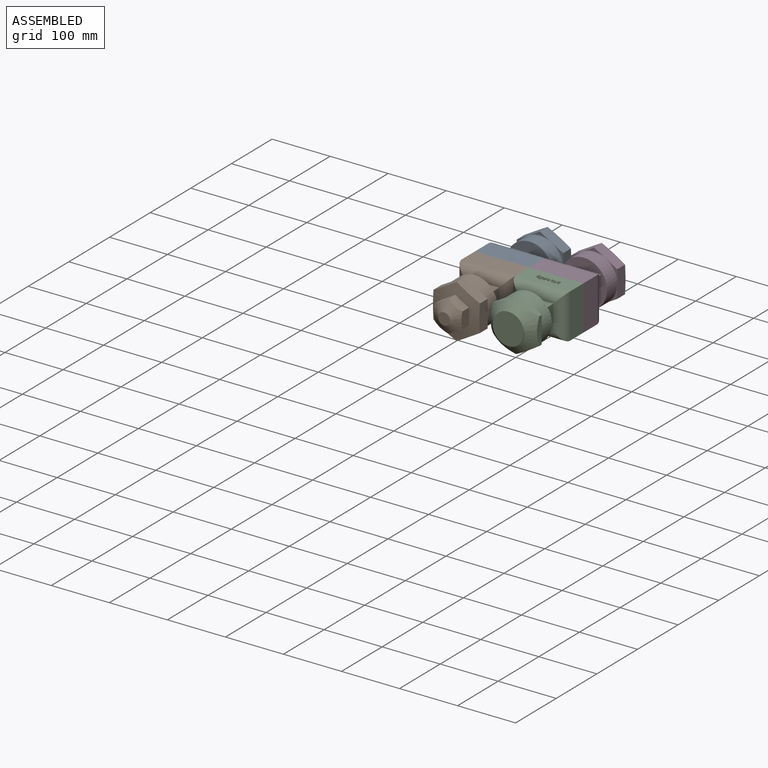
[diagram: assembled view]
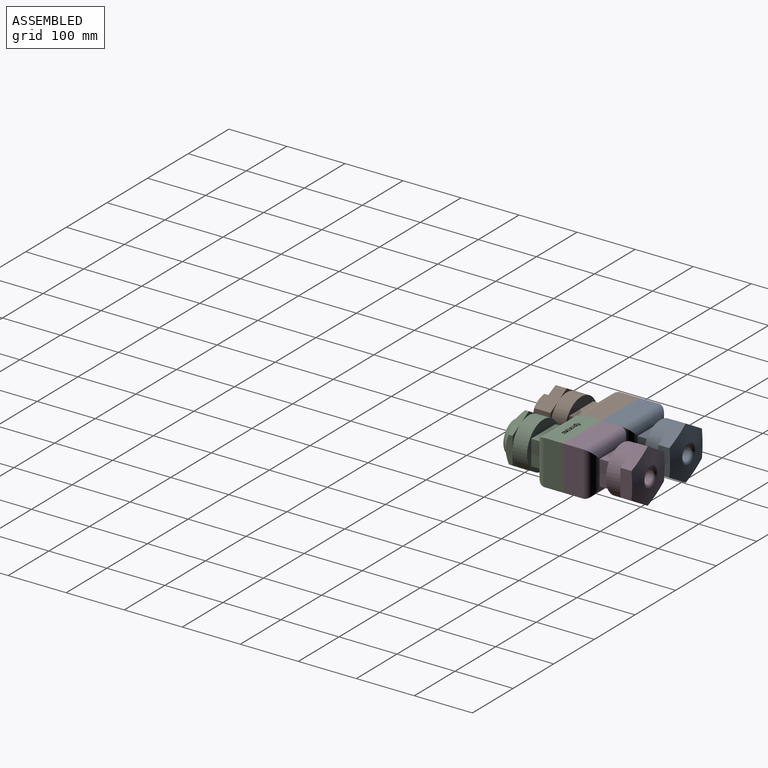
[diagram: assembled view, second angle]
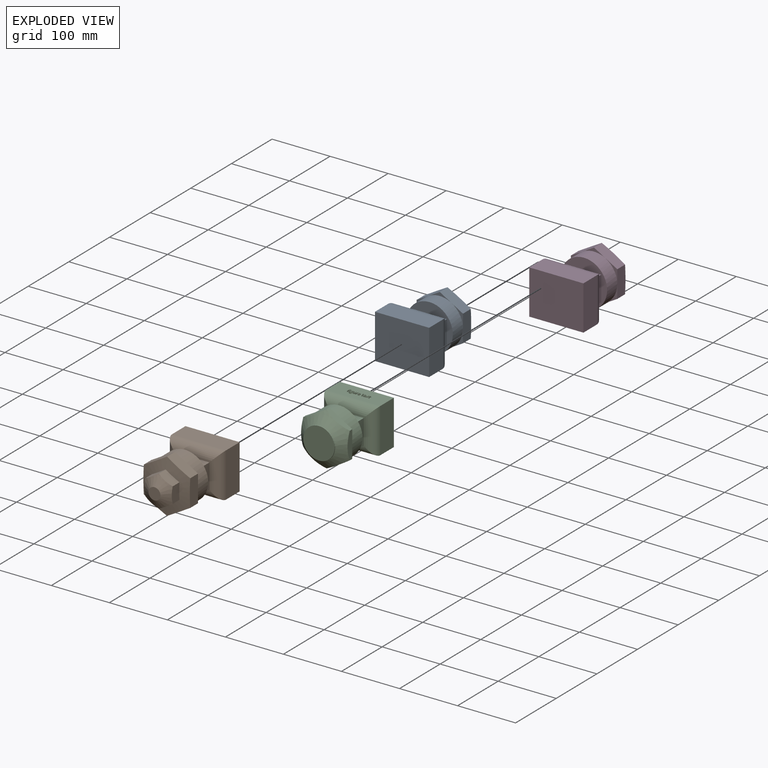
[diagram: exploded view]
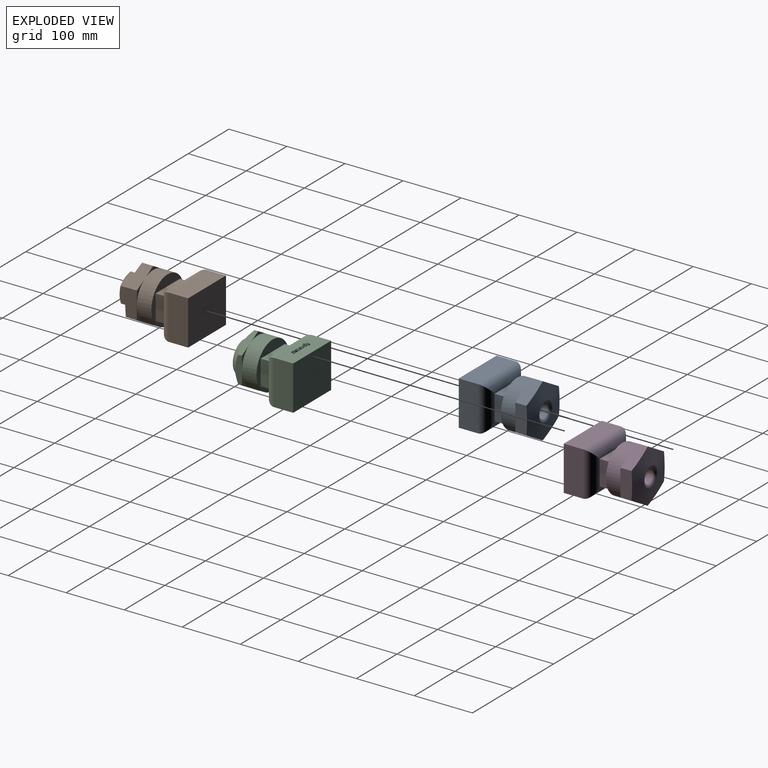
[diagram: exploded view, second angle]
ASSEMBLY  parts=4 mates=5
PART A: 46 faces, bbox 93.3x117x92.4 mm
  f0: plane 88.34x30.6mm, normal (0,0,-1), area 2703.3mm2, adj f1,f3,f4,f5
  f1: plane 71.7x30.6mm, normal (1,0,0), area 2194.1mm2, adj f0,f2,f4,f6
  f2: plane 88.34x30.6mm, normal (0,0,1), area 2703.3mm2, adj f1,f3,f4,f8
  f3: plane 71.7x30.6mm, normal (-1,0,0), area 2194.1mm2, adj f0,f2,f4,f7
  f4: plane 88.34x71.7mm, normal (0,1,0), area 6334.1mm2, adj f0,f1,f2,f3
  f5: cylinder r=14.4mm len=88.34mm, axis (1,0,0), area 1904.8mm2, adj f0,f6,f7,f12
  f6: cylinder r=14.4mm len=71.7mm, axis (0,0,1), area 1486.6mm2, adj f1,f5,f8,f11
  f7: cylinder r=14.4mm len=71.7mm, axis (0,0,-1), area 1486.6mm2, adj f3,f5,f8,f9
  f8: cylinder r=14.4mm len=88.34mm, axis (-1,0,0), area 1904.8mm2, adj f2,f6,f7,f10
  f9: plane 37.9x23.12mm, normal (-1,0,0), area 876.2mm2, adj f7,f10,f12,f13
  f10: plane 54.54x23.12mm, normal (0,0,1), area 1261mm2, adj f8,f9,f11,f13
  f11: plane 37.9x23.12mm, normal (1,0,0), area 876.2mm2, adj f6,f10,f12,f13
  f12: plane 54.54x23.12mm, normal (0,0,-1), area 1261mm2, adj f5,f9,f11,f13
  f13: plane 75x75mm, normal (0,1,0), area 2350.6mm2, adj f9,f10,f11,f12,f14
  f14: cylinder r=37.5mm len=75mm, axis (0,-1,0), area 5301.4mm2, adj f13,f15
  f15: plane 75x75mm, normal (0,-1,0), area 3981.4mm2, adj f14,f16
  f16: cylinder r=11.79mm len=23.57mm, axis (0,1,0), area 1412.3mm2, adj f15,f45
  f17: plane 40x23.09mm, normal (0.5,0,0.87), area 914.5mm2, adj f18,f22,f23,f28,f44
  f18: plane 46.2x20.17mm, normal (1,0,0), area 914.5mm2, adj f17,f19,f23,f24,f44
  f19: plane 40x23.09mm, normal (0.5,0,-0.87), area 914.5mm2, adj f18,f20,f24,f25,f44
  f20: plane 40x23.09mm, normal (-0.5,0,-0.87), area 914.5mm2, adj f19,f21,f25,f26,f44
  f21: plane 46.2x20.17mm, normal (-1,0,0), area 914.5mm2, adj f20,f22,f26,f27,f44
  f22: plane 40x23.09mm, normal (-0.5,0,0.87), area 914.5mm2, adj f17,f21,f27,f28,f44
  f23: plane 34.64x20mm, normal (0,-1,0), area 86mm2, adj f17,f18,f43
  f24: plane 34.64x20mm, normal (0,-1,0), area 86mm2, adj f18,f19,f43
  f25: plane 40x11.55mm, normal (0,-1,0), area 86mm2, adj f19,f20,f43
  f26: plane 34.64x20mm, normal (0,-1,0), area 86mm2, adj f20,f21,f43
  f27: plane 34.64x20mm, normal (0,-1,0), area 86mm2, adj f21,f22,f43
  f28: plane 40x11.55mm, normal (0,-1,0), area 86mm2, adj f17,f22,f43
  f29: plane 93.34x76.7mm, normal (0,-1,0), area 7159.3mm2, adj f30,f31,f32,f33
  f30: plane 76.7x33.1mm, normal (-1,0,0), area 2538.8mm2, adj f29,f31,f33,f34
  f31: plane 93.34x33.1mm, normal (0,0,-1), area 3089.7mm2, adj f29,f30,f32,f35
  f32: plane 76.7x33.1mm, normal (1,0,0), area 2538.8mm2, adj f29,f31,f33,f36
  f33: plane 93.34x33.1mm, normal (0,0,1), area 3089.7mm2, adj f29,f30,f32,f37
  f34: cylinder r=16.9mm len=76.7mm, axis (0,0,1), area 1710mm2, adj f30,f35,f37,f38
  f35: cylinder r=16.9mm len=93.34mm, axis (-1,0,0), area 2151.8mm2, adj f31,f34,f36,f39
  f36: cylinder r=16.9mm len=76.7mm, axis (0,0,-1), area 1710mm2, adj f32,f35,f37,f40
  f37: cylinder r=16.9mm len=93.34mm, axis (1,0,0), area 2151.8mm2, adj f33,f34,f36,f41
  f38: plane 42.9x17.9mm, normal (-1,0,0), area 767.9mm2, adj f34,f39,f41,f42
  f39: plane 59.54x17.9mm, normal (0,0,-1), area 1065.8mm2, adj f35,f38,f40,f42
  f40: plane 42.9x17.9mm, normal (1,0,0), area 767.9mm2, adj f36,f39,f41,f42
  f41: plane 59.54x17.9mm, normal (0,0,1), area 1065.8mm2, adj f37,f38,f40,f42
  f42: plane 80x80mm, normal (0,-1,0), area 2472.1mm2, adj f38,f39,f40,f41,f43
  f43: cylinder r=40mm len=80mm, axis (0,-1,0), area 6283.2mm2, adj f23,f24,f25,f26,f27,f28,f42
  f44: cone r=10.53mm half-angle=80.3deg, axis (0,-1,0), area 4632.5mm2, adj f17,f18,f19,f20,f21,f22,f45
  f45: torus R=16.79mm, axis (0,-1,0), area 763.1mm2, adj f16,f44
PART B: 52 faces, bbox 93.3x142.9x92.4 mm
  f0: plane 23.65x19.03mm, normal (0.5,0,-0.87), area 486.1mm2, adj f1,f5,f6,f34
  f1: plane 23.65x19.03mm, normal (-0.5,0,-0.87), area 486.1mm2, adj f0,f2,f6,f34
  f2: plane 27.33x19.04mm, normal (-1,0,0), area 486.1mm2, adj f1,f3,f6,f34
  f3: plane 23.65x19.03mm, normal (-0.5,0,0.87), area 486.1mm2, adj f2,f4,f6,f34
  f4: plane 23.65x19.03mm, normal (0.5,0,0.87), area 486.1mm2, adj f3,f5,f6,f34
  f5: plane 27.33x19.04mm, normal (1,0,0), area 486.1mm2, adj f0,f4,f6,f34
  f6: cone r=10.53mm half-angle=80.3deg, axis (0,-1,0), area 3657.6mm2, adj f0,f1,f2,f3,f4,f5,f7,f8
  f7: plane 40x23.09mm, normal (0.5,0,0.87), area 914.5mm2, adj f6,f8,f12,f13,f18
  f8: plane 46.2x20.17mm, normal (1,0,0), area 914.5mm2, adj f6,f7,f9,f13,f14
  f9: plane 40x23.09mm, normal (0.5,0,-0.87), area 914.5mm2, adj f6,f8,f10,f14,f15
  f10: plane 40x23.09mm, normal (-0.5,0,-0.87), area 914.5mm2, adj f6,f9,f11,f15,f16
  f11: plane 46.2x20.17mm, normal (-1,0,0), area 914.5mm2, adj f6,f10,f12,f16,f17
  f12: plane 40x23.09mm, normal (-0.5,0,0.87), area 914.5mm2, adj f6,f7,f11,f17,f18
  f13: plane 34.64x20mm, normal (0,-1,0), area 86mm2, adj f7,f8,f33
  f14: plane 34.64x20mm, normal (0,-1,0), area 86mm2, adj f8,f9,f33
  f15: plane 40x11.55mm, normal (0,-1,0), area 86mm2, adj f9,f10,f33
  f16: plane 34.64x20mm, normal (0,-1,0), area 86mm2, adj f10,f11,f33
  f17: plane 34.64x20mm, normal (0,-1,0), area 86mm2, adj f11,f12,f33
  f18: plane 40x11.55mm, normal (0,-1,0), area 86mm2, adj f7,f12,f33
  f19: plane 93.34x76.7mm, normal (0,-1,0), area 7159.3mm2, adj f20,f21,f22,f23
  f20: plane 76.7x33.1mm, normal (-1,0,0), area 2538.8mm2, adj f19,f21,f23,f24
  f21: plane 93.34x33.1mm, normal (0,0,-1), area 3089.7mm2, adj f19,f20,f22,f25
  f22: plane 76.7x33.1mm, normal (1,0,0), area 2538.8mm2, adj f19,f21,f23,f26
  f23: plane 93.34x33.1mm, normal (0,0,1), area 3089.7mm2, adj f19,f20,f22,f27
  f24: cylinder r=16.9mm len=76.7mm, axis (0,0,1), area 1710mm2, adj f20,f25,f27,f28
  f25: cylinder r=16.9mm len=93.34mm, axis (-1,0,0), area 2151.8mm2, adj f21,f24,f26,f29
  f26: cylinder r=16.9mm len=76.7mm, axis (0,0,-1), area 1710mm2, adj f22,f25,f27,f30
  f27: cylinder r=16.9mm len=93.34mm, axis (1,0,0), area 2151.8mm2, adj f23,f24,f26,f31
  f28: plane 42.9x17.9mm, normal (-1,0,0), area 767.9mm2, adj f24,f29,f31,f32
  f29: plane 59.54x17.9mm, normal (0,0,-1), area 1065.8mm2, adj f25,f28,f30,f32
  f30: plane 42.9x17.9mm, normal (1,0,0), area 767.9mm2, adj f26,f29,f31,f32
  f31: plane 59.54x17.9mm, normal (0,0,1), area 1065.8mm2, adj f27,f28,f30,f32
  f32: plane 80x80mm, normal (0,-1,0), area 2472.1mm2, adj f28,f29,f30,f31,f33
  f33: cylinder r=40mm len=80mm, axis (0,-1,0), area 6283.2mm2, adj f13,f14,f15,f16,f17,f18,f32
  f34: cone r=32.39mm half-angle=57.1deg, axis (0,-1,0), area 1910.5mm2, adj f0,f1,f2,f3,f4,f5,f35
  f35: plane 20.61x20.61mm, normal (0,1,0), area 333.6mm2, adj f34
  f36: plane 88.34x30.6mm, normal (0,0,-1), area 2703.3mm2, adj f37,f39,f40,f41
  f37: plane 71.7x30.6mm, normal (1,0,0), area 2194.1mm2, adj f36,f38,f40,f42
  f38: plane 88.34x30.6mm, normal (0,0,1), area 2703.3mm2, adj f37,f39,f40,f44
  f39: plane 71.7x30.6mm, normal (-1,0,0), area 2194.1mm2, adj f36,f38,f40,f43
  f40: plane 88.34x71.7mm, normal (0,1,0), area 6334.1mm2, adj f36,f37,f38,f39
  f41: cylinder r=14.4mm len=88.34mm, axis (1,0,0), area 1904.8mm2, adj f36,f42,f43,f48
  f42: cylinder r=14.4mm len=71.7mm, axis (0,0,1), area 1486.6mm2, adj f37,f41,f44,f47
  f43: cylinder r=14.4mm len=71.7mm, axis (0,0,-1), area 1486.6mm2, adj f39,f41,f44,f45
  f44: cylinder r=14.4mm len=88.34mm, axis (-1,0,0), area 1904.8mm2, adj f38,f42,f43,f46
  f45: plane 37.9x23.12mm, normal (-1,0,0), area 876.2mm2, adj f43,f46,f48,f49
  f46: plane 54.54x23.12mm, normal (0,0,1), area 1261mm2, adj f44,f45,f47,f49
  f47: plane 37.9x23.12mm, normal (1,0,0), area 876.2mm2, adj f42,f46,f48,f49
  f48: plane 54.54x23.12mm, normal (0,0,-1), area 1261mm2, adj f41,f45,f47,f49
  f49: plane 75x75mm, normal (0,1,0), area 2350.6mm2, adj f45,f46,f47,f48,f50
  f50: cylinder r=37.5mm len=75mm, axis (0,-1,0), area 5301.4mm2, adj f49,f51
  f51: plane 75x75mm, normal (0,-1,0), area 4417.9mm2, adj f50
PART C: 252 faces, bbox 93.3x117.9x92.4 mm
  f0: plane 93.34x33.1mm, normal (0,0,-1), area 3013.5mm2, adj f13,f14,f15,f18,f30,f31,f32,f33
  f1: plane 40x23.09mm, normal (0.5,0,0.87), area 461.3mm2, adj f2,f6,f7,f12,f27
  f2: plane 46.21x11.86mm, normal (1,0,0), area 461.3mm2, adj f1,f3,f7,f8,f27
  f3: plane 40x23.09mm, normal (0.5,0,-0.87), area 461.3mm2, adj f2,f4,f8,f9,f27
  f4: plane 40x23.09mm, normal (-0.5,0,-0.87), area 461.3mm2, adj f3,f5,f9,f10,f27
  f5: plane 46.21x11.86mm, normal (-1,0,0), area 461.3mm2, adj f4,f6,f10,f11,f27
  f6: plane 40x23.09mm, normal (-0.5,0,0.87), area 461.3mm2, adj f1,f5,f11,f12,f27
  f7: plane 34.64x20mm, normal (0,-1,0), area 86mm2, adj f1,f2,f26
  f8: plane 34.64x20mm, normal (0,-1,0), area 86mm2, adj f2,f3,f26
  f9: plane 40x11.55mm, normal (0,-1,0), area 86mm2, adj f3,f4,f26
  f10: plane 34.64x20mm, normal (0,-1,0), area 86mm2, adj f4,f5,f26
  f11: plane 34.64x20mm, normal (0,-1,0), area 86mm2, adj f5,f6,f26
  f12: plane 40x11.55mm, normal (0,-1,0), area 86mm2, adj f1,f6,f26
  f13: plane 93.34x76.7mm, normal (0,-1,0), area 7159.3mm2, adj f0,f14,f15,f16
  f14: plane 76.7x33.1mm, normal (-1,0,0), area 2538.8mm2, adj f0,f13,f16,f17
  f15: plane 76.7x33.1mm, normal (1,0,0), area 2538.8mm2, adj f0,f13,f16,f19
  f16: plane 93.34x33.1mm, normal (0,0,1), area 3089.7mm2, adj f13,f14,f15,f20
  f17: cylinder r=16.9mm len=76.7mm, axis (0,0,1), area 1710mm2, adj f14,f18,f20,f21
  f18: cylinder r=16.9mm len=93.34mm, axis (-1,0,0), area 2151.8mm2, adj f0,f17,f19,f22
  f19: cylinder r=16.9mm len=76.7mm, axis (0,0,-1), area 1710mm2, adj f15,f18,f20,f23
  f20: cylinder r=16.9mm len=93.34mm, axis (1,0,0), area 2151.8mm2, adj f16,f17,f19,f24
  f21: plane 42.9x17.9mm, normal (-1,0,0), area 767.9mm2, adj f17,f22,f24,f25
  f22: plane 59.54x17.9mm, normal (0,0,-1), area 1065.8mm2, adj f18,f21,f23,f25
  f23: plane 42.9x17.9mm, normal (1,0,0), area 767.9mm2, adj f19,f22,f24,f25
  f24: plane 59.54x17.9mm, normal (0,0,1), area 1065.8mm2, adj f20,f21,f23,f25
  f25: plane 80x80mm, normal (0,-1,0), area 2472.1mm2, adj f21,f22,f23,f24,f26
  f26: cylinder r=40mm len=80mm, axis (0,-1,0), area 6283.2mm2, adj f7,f8,f9,f10,f11,f12,f25
  f27: cone r=26.92mm half-angle=48.7deg, axis (0,-1,0), area 4346.4mm2, adj f1,f2,f3,f4,f5,f6,f28
  f28: cone r=26.87mm half-angle=0.4deg, axis (0,-1,0), area 281.3mm2, adj f27,f29
  f29: plane 53.82x53.82mm, normal (0,1,0), area 2274.8mm2, adj f28
  f30: plane 2x1.13mm, normal (0,1,0), area 2.3mm2, adj f0,f31,f46,f47
  f31: plane 2x0.52mm, normal (1,0,0), area 1mm2, adj f0,f30,f32,f47
  f32: plane 2x1.13mm, normal (0,-1,0), area 2.3mm2, adj f0,f31,f33,f47
  f33: plane 2x0.29mm, normal (1,0,0), area 0.6mm2, adj f0,f32,f34,f47
  f34: extruded ~2x0.81mm, area 1.7mm2, adj f0,f33,f35,f47
  f35: extruded ~2x0.56mm, area 1.3mm2, adj f0,f34,f36,f47
  f36: extruded ~2x0.66mm, area 1.4mm2, adj f0,f35,f37,f47
  f37: plane 2x0.54mm, normal (0.95,0.31,0), area 1.1mm2, adj f0,f36,f38,f47
  f38: extruded ~2x0.83mm, area 1.7mm2, adj f0,f37,f39,f47
  f39: extruded ~2x1.64mm, area 5mm2, adj f0,f38,f40,f47
  f40: plane 2x0.25mm, normal (-1,0,0), area 0.5mm2, adj f0,f39,f41,f47
  f41: plane 2x0.79mm, normal (-0.29,-0.96,0), area 1.7mm2, adj f0,f40,f42,f47
  f42: plane 2x0.3mm, normal (-1,0,0), area 0.6mm2, adj f0,f41,f43,f47
  f43: plane 2x0.79mm, normal (0,1,0), area 1.6mm2, adj f0,f42,f44,f47
  f44: plane 3.92x2mm, normal (-1,0,0), area 7.8mm2, adj f0,f43,f45,f47
  f45: plane 2x0.67mm, normal (0,1,0), area 1.3mm2, adj f0,f44,f46,f47
  f46: plane 3.92x2mm, normal (1,0,0), area 7.8mm2, adj f0,f30,f45,f47
  f47: plane 6.35x3.05mm, normal (0,0,-1), area 5.8mm2, adj f30,f31,f32,f33,f34,f35,f36,f37
  f48: plane 2x0.67mm, normal (0,1,0), area 1.3mm2, adj f0,f49,f51,f52
  f49: plane 4.44x2mm, normal (1,0,0), area 8.9mm2, adj f0,f48,f50,f52
  f50: plane 2x0.67mm, normal (0,-1,0), area 1.3mm2, adj f0,f49,f51,f52
  f51: plane 4.44x2mm, normal (-1,0,0), area 8.9mm2, adj f0,f48,f50,f52
  f52: plane 4.44x0.67mm, normal (0,0,-1), area 3mm2, adj f48,f49,f50,f51
  f53: extruded ~2x0.34mm, area 0.7mm2, adj f0,f54,f60,f61
  f54: extruded ~2x0.34mm, area 0.7mm2, adj f0,f53,f55,f61
  f55: extruded ~2x0.28mm, area 0.6mm2, adj f0,f54,f56,f61
  f56: extruded ~2x0.28mm, area 0.6mm2, adj f0,f55,f57,f61
  f57: extruded ~2x0.34mm, area 0.7mm2, adj f0,f56,f58,f61
  f58: extruded ~2x0.34mm, area 0.7mm2, adj f0,f57,f59,f61
  f59: extruded ~2x0.28mm, area 0.6mm2, adj f0,f58,f60,f61
  f60: extruded ~2x0.28mm, area 0.6mm2, adj f0,f53,f59,f61
  f61: plane 0.9x0.8mm, normal (0,0,-1), area 0.6mm2, adj f53,f54,f55,f56,f57,f58,f59,f60
  f62: extruded ~2x0.71mm, area 1.6mm2, adj f63,f105,f106,f107
  f63: extruded ~2x0.76mm, area 1.6mm2, adj f62,f64,f106,f107
  f64: extruded ~2x0.73mm, area 1.6mm2, adj f63,f65,f106,f107
  f65: extruded ~2x1mm, area 3.2mm2, adj f64,f66,f106,f107
  f66: extruded ~2x0.98mm, area 3.2mm2, adj f65,f105,f106,f107
  f67: extruded ~2x0.55mm, area 1.3mm2, adj f68,f103,f106,f108
  f68: extruded ~2x0.63mm, area 1.4mm2, adj f67,f69,f106,f108
  f69: extruded ~2x0.71mm, area 1.5mm2, adj f68,f70,f106,f108
  f70: plane 2x0.81mm, normal (0,1,0), area 1.6mm2, adj f69,f71,f106,f108
  f71: extruded ~2x0.84mm, area 1.7mm2, adj f70,f72,f106,f108
  f72: extruded ~2x0.5mm, area 1.1mm2, adj f71,f73,f106,f108
  f73: extruded ~2x0.69mm, area 1.7mm2, adj f72,f74,f106,f108
  f74: extruded ~2x1.25mm, area 2.6mm2, adj f73,f103,f106,f108
  f75: plane 2x0.43mm, normal (1,0,0), area 0.9mm2, adj f0,f76,f104,f106
  f76: plane 2x1.54mm, normal (0,-1,0), area 3.1mm2, adj f0,f75,f77,f106
  f77: extruded ~2x0.63mm, area 1.3mm2, adj f0,f76,f78,f106
  f78: extruded ~2x1.24mm, area 2.7mm2, adj f0,f77,f79,f106
  f79: extruded ~2x1.13mm, area 2.5mm2, adj f0,f78,f80,f106
  f80: extruded ~2x0.78mm, area 1.6mm2, adj f0,f79,f81,f106
  f81: extruded ~2x0.56mm, area 1.5mm2, adj f0,f80,f82,f106
  f82: extruded ~2x0.41mm, area 1.1mm2, adj f0,f81,f83,f106
  f83: extruded ~2x0.43mm, area 0.9mm2, adj f0,f82,f84,f106
  f84: extruded ~2x0.38mm, area 0.8mm2, adj f0,f83,f85,f106
  f85: extruded ~2x0.29mm, area 0.8mm2, adj f0,f84,f86,f106
  f86: extruded ~2x0.73mm, area 1.7mm2, adj f0,f85,f87,f106
  f87: extruded ~2x0.7mm, area 1.5mm2, adj f0,f86,f88,f106
  f88: extruded ~2x0.92mm, area 2.2mm2, adj f0,f87,f89,f106
  f89: extruded ~2x1.34mm, area 2.8mm2, adj f0,f88,f90,f106
  f90: extruded ~2x1.73mm, area 3.6mm2, adj f0,f89,f91,f106
  f91: extruded ~2x1.13mm, area 2.7mm2, adj f0,f90,f92,f106
  f92: extruded ~2x0.88mm, area 2mm2, adj f0,f91,f93,f106
  f93: extruded ~2x1.11mm, area 2.3mm2, adj f0,f92,f94,f106
  f94: plane 2x0.79mm, normal (0,-1,0), area 1.6mm2, adj f0,f93,f95,f106
  f95: extruded ~2x0.51mm, area 1.1mm2, adj f0,f94,f96,f106
  f96: extruded ~2x0.27mm, area 0.6mm2, adj f0,f95,f97,f106
  f97: extruded ~2x0.57mm, area 1.5mm2, adj f0,f96,f98,f106
  f98: extruded ~2x0.37mm, area 0.7mm2, adj f0,f97,f99,f106
  f99: extruded ~2x1.22mm, area 2.6mm2, adj f0,f98,f100,f106
  f100: extruded ~2x1.04mm, area 2.3mm2, adj f0,f99,f101,f106
  f101: extruded ~2x0.52mm, area 1.1mm2, adj f0,f100,f102,f106
  f102: extruded ~2x0.37mm, area 0.8mm2, adj f0,f101,f104,f106
  f103: extruded ~2x0.87mm, area 1.8mm2, adj f67,f74,f106,f108
  f104: plane 2x0.82mm, normal (0.12,0.99,0), area 1.7mm2, adj f0,f75,f102,f106
  f105: extruded ~2x0.73mm, area 1.6mm2, adj f62,f66,f106,f107
  f106: plane 6.52x4.19mm, normal (0,0,-1), area 11.3mm2, adj f62,f63,f64,f65,f66,f67,f68,f69
  f107: plane 1.98x1.96mm, normal (0,0,-1), area 3.2mm2, adj f62,f63,f64,f65,f66,f105
  f108: plane 2.84x1.58mm, normal (0,0,-1), area 3.8mm2, adj f67,f68,f69,f70,f71,f72,f73,f74
  f109: plane 2.88x2mm, normal (1,0,0), area 5.8mm2, adj f0,f110,f125,f126
  f110: plane 2x0.68mm, normal (0,-1,0), area 1.4mm2, adj f0,f109,f111,f126
  f111: plane 2.91x2mm, normal (-1,0,0), area 5.8mm2, adj f0,f110,f112,f126
  f112: extruded ~2x1.23mm, area 2.7mm2, adj f0,f111,f113,f126
  f113: extruded ~2x1.21mm, area 2.6mm2, adj f0,f112,f114,f126
  f114: extruded ~2x0.84mm, area 1.7mm2, adj f0,f113,f115,f126
  f115: extruded ~2x0.57mm, area 1.5mm2, adj f0,f114,f116,f126
  f116: plane 2x0.04mm, normal (0,1,0), area 0.1mm2, adj f0,f115,f117,f126
  f117: plane 2x0.6mm, normal (-0.99,0.16,0), area 1.2mm2, adj f0,f116,f118,f126
  f118: plane 2x0.56mm, normal (0,1,0), area 1.1mm2, adj f0,f117,f119,f126
  f119: plane 4.44x2mm, normal (1,0,0), area 8.9mm2, adj f0,f118,f120,f126
  f120: plane 2x0.67mm, normal (0,-1,0), area 1.3mm2, adj f0,f119,f121,f126
  f121: plane 2.34x2mm, normal (-1,0,0), area 4.7mm2, adj f0,f120,f122,f126
  f122: extruded ~2x1.25mm, area 2.6mm2, adj f0,f121,f123,f126
  f123: extruded ~2x1.02mm, area 2.2mm2, adj f0,f122,f124,f126
  f124: extruded ~2x0.77mm, area 1.7mm2, adj f0,f123,f125,f126
  f125: extruded ~2x0.81mm, area 1.7mm2, adj f0,f109,f124,f126
  f126: plane 4.53x3.72mm, normal (0,0,-1), area 7.2mm2, adj f109,f110,f111,f112,f113,f114,f115,f116
  f127: extruded ~2x0.53mm, area 1.1mm2, adj f0,f128,f139,f140
  f128: extruded ~2x0.77mm, area 1.6mm2, adj f0,f127,f129,f140
  f129: extruded ~2x0.67mm, area 1.8mm2, adj f0,f128,f130,f140
  f130: plane 2x0.03mm, normal (0,-1,0), area 0.1mm2, adj f0,f129,f131,f140
  f131: plane 2x0.82mm, normal (1,-0.09,0), area 1.7mm2, adj f0,f130,f132,f140
  f132: plane 2x0.56mm, normal (0,-1,0), area 1.1mm2, adj f0,f131,f133,f140
  f133: plane 4.44x2mm, normal (-1,0,0), area 8.9mm2, adj f0,f132,f134,f140
  f134: plane 2x0.67mm, normal (0,1,0), area 1.3mm2, adj f0,f133,f135,f140
  f135: plane 2.38x2mm, normal (1,0,0), area 4.8mm2, adj f0,f134,f136,f140
  f136: extruded ~2x1.09mm, area 2.4mm2, adj f0,f135,f137,f140
  f137: extruded ~2x0.92mm, area 2.1mm2, adj f0,f136,f138,f140
  f138: extruded ~2x0.49mm, area 1mm2, adj f0,f137,f139,f140
  f139: plane 2x0.62mm, normal (0.99,0.15,0), area 1.3mm2, adj f0,f127,f138,f140
  f140: plane 4.53x2.56mm, normal (0,0,-1), area 4.1mm2, adj f127,f128,f129,f130,f131,f132,f133,f134
  f141: extruded ~2x0.85mm, area 1.9mm2, adj f142,f159,f160,f161
  f142: extruded ~2x0.81mm, area 1.8mm2, adj f141,f143,f160,f161
  f143: extruded ~2x0.97mm, area 2.1mm2, adj f142,f144,f160,f161
  f144: plane 2.32x2mm, normal (0,-1,0), area 4.6mm2, adj f143,f159,f160,f161
  f145: extruded ~2x1.56mm, area 3.4mm2, adj f0,f146,f158,f160
  f146: extruded ~2x0.77mm, area 1.5mm2, adj f0,f145,f147,f160
  f147: extruded ~2x0.67mm, area 1.4mm2, adj f0,f146,f148,f160
  f148: plane 2x0.6mm, normal (1,0,0), area 1.2mm2, adj f0,f147,f149,f160
  f149: extruded ~2x1.42mm, area 2.9mm2, adj f0,f148,f150,f160
  f150: extruded ~2x1.06mm, area 2.3mm2, adj f0,f149,f151,f160
  f151: extruded ~2x1.19mm, area 2.6mm2, adj f0,f150,f152,f160
  f152: plane 3.06x2mm, normal (0,1,0), area 6.1mm2, adj f0,f151,f153,f160
  f153: plane 2x0.43mm, normal (1,0,0), area 0.9mm2, adj f0,f152,f154,f160
  f154: extruded ~2x1.45mm, area 3.1mm2, adj f0,f153,f155,f160
  f155: extruded ~2x1.32mm, area 3mm2, adj f0,f154,f156,f160
  f156: extruded ~2x1.42mm, area 3.2mm2, adj f0,f155,f157,f160
  f157: extruded ~2x1.71mm, area 3.7mm2, adj f0,f156,f158,f160
  f158: extruded ~2x1.67mm, area 3.6mm2, adj f0,f145,f157,f160
  f159: extruded ~2x0.96mm, area 2.1mm2, adj f141,f144,f160,f161
  f160: plane 4.61x3.76mm, normal (0,0,-1), area 7.9mm2, adj f141,f142,f143,f144,f145,f146,f147,f148
  f161: plane 2.32x1.31mm, normal (0,0,-1), area 2.5mm2, adj f141,f142,f143,f144,f159
  f162: extruded ~2x0.35mm, area 0.7mm2, adj f0,f163,f180,f181
  f163: extruded ~2x0.52mm, area 1.2mm2, adj f0,f162,f164,f181
  f164: extruded ~2x0.62mm, area 1.3mm2, adj f0,f163,f165,f181
  f165: plane 2.62x2mm, normal (1,0,0), area 5.2mm2, adj f0,f164,f166,f181
  f166: plane 2x1.29mm, normal (0,1,0), area 2.6mm2, adj f0,f165,f167,f181
  f167: plane 2x0.52mm, normal (1,0,0), area 1mm2, adj f0,f166,f168,f181
  f168: plane 2x1.29mm, normal (0,-1,0), area 2.6mm2, adj f0,f167,f169,f181
  f169: plane 2x1.03mm, normal (1,0,0), area 2.1mm2, adj f0,f168,f170,f181
  f170: plane 2x0.39mm, normal (0,-1,0), area 0.8mm2, adj f0,f169,f171,f181
  f171: plane 2x0.95mm, normal (-0.96,-0.29,0), area 2mm2, adj f0,f170,f172,f181
  f172: plane 2x0.64mm, normal (-0.4,-0.92,0), area 1.4mm2, adj f0,f171,f173,f181
  f173: plane 2x0.32mm, normal (-1,0,0), area 0.6mm2, adj f0,f172,f174,f181
  f174: plane 2x0.64mm, normal (0,1,0), area 1.3mm2, adj f0,f173,f175,f181
  f175: plane 2.64x2mm, normal (-1,0,0), area 5.3mm2, adj f0,f174,f176,f181
  f176: extruded ~2x1.36mm, area 4.3mm2, adj f0,f175,f177,f181
  f177: extruded ~2x0.38mm, area 0.8mm2, adj f0,f176,f178,f181
  f178: extruded ~2x0.32mm, area 0.7mm2, adj f0,f177,f179,f181
  f179: plane 2x0.52mm, normal (1,0,0), area 1mm2, adj f0,f178,f180,f181
  f180: extruded ~2x0.26mm, area 0.5mm2, adj f0,f162,f179,f181
  f181: plane 5.56x2.63mm, normal (0,0,-1), area 5.1mm2, adj f162,f163,f164,f165,f166,f167,f168,f169
  f182: extruded ~2x0.85mm, area 1.9mm2, adj f183,f200,f201,f202
  f183: extruded ~2x0.81mm, area 1.8mm2, adj f182,f184,f201,f202
  f184: extruded ~2x0.97mm, area 2.1mm2, adj f183,f185,f201,f202
  f185: plane 2.32x2mm, normal (0,-1,0), area 4.6mm2, adj f184,f200,f201,f202
  f186: extruded ~2x1.56mm, area 3.4mm2, adj f0,f187,f199,f201
  f187: extruded ~2x0.77mm, area 1.5mm2, adj f0,f186,f188,f201
  f188: extruded ~2x0.67mm, area 1.4mm2, adj f0,f187,f189,f201
  f189: plane 2x0.6mm, normal (1,0,0), area 1.2mm2, adj f0,f188,f190,f201
  f190: extruded ~2x1.42mm, area 2.9mm2, adj f0,f189,f191,f201
  f191: extruded ~2x1.06mm, area 2.3mm2, adj f0,f190,f192,f201
  f192: extruded ~2x1.19mm, area 2.6mm2, adj f0,f191,f193,f201
  f193: plane 3.06x2mm, normal (0,1,0), area 6.1mm2, adj f0,f192,f194,f201
  f194: plane 2x0.43mm, normal (1,0,0), area 0.9mm2, adj f0,f193,f195,f201
  f195: extruded ~2x1.45mm, area 3.1mm2, adj f0,f194,f196,f201
  f196: extruded ~2x1.32mm, area 3mm2, adj f0,f195,f197,f201
  f197: extruded ~2x1.42mm, area 3.2mm2, adj f0,f196,f198,f201
  f198: extruded ~2x1.71mm, area 3.7mm2, adj f0,f197,f199,f201
  f199: extruded ~2x1.67mm, area 3.6mm2, adj f0,f186,f198,f201
  f200: extruded ~2x0.96mm, area 2.1mm2, adj f182,f185,f201,f202
  f201: plane 4.61x3.76mm, normal (0,0,-1), area 7.9mm2, adj f182,f183,f184,f185,f186,f187,f188,f189
  f202: plane 2.32x1.31mm, normal (0,0,-1), area 2.5mm2, adj f182,f183,f184,f185,f200
  f203: plane 2.17x2mm, normal (-0.81,0.58,0), area 5.3mm2, adj f0,f204,f214,f215
  f204: plane 2.27x2mm, normal (-0.81,-0.58,0), area 5.6mm2, adj f0,f203,f205,f215
  f205: plane 2x0.76mm, normal (0,1,0), area 1.5mm2, adj f0,f204,f206,f215
  f206: plane 2x1.8mm, normal (0.82,0.57,0), area 4.4mm2, adj f0,f205,f207,f215
  f207: plane 2x1.8mm, normal (-0.82,0.57,0), area 4.4mm2, adj f0,f206,f208,f215
  f208: plane 2x0.76mm, normal (0,1,0), area 1.5mm2, adj f0,f207,f209,f215
  f209: plane 2.27x2mm, normal (0.81,-0.58,0), area 5.6mm2, adj f0,f208,f210,f215
  f210: plane 2.17x2mm, normal (0.81,0.58,0), area 5.3mm2, adj f0,f209,f211,f215
  f211: plane 2x0.76mm, normal (0,-1,0), area 1.5mm2, adj f0,f210,f212,f215
  f212: plane 2x1.7mm, normal (-0.82,-0.57,0), area 4.1mm2, adj f0,f211,f213,f215
  f213: plane 2x1.7mm, normal (0.82,-0.57,0), area 4.1mm2, adj f0,f212,f214,f215
  f214: plane 2x0.77mm, normal (0,-1,0), area 1.5mm2, adj f0,f203,f213,f215
  f215: plane 4.44x4.03mm, normal (0,0,-1), area 6.2mm2, adj f203,f204,f205,f206,f207,f208,f209,f210
  f216: extruded ~2x0.35mm, area 0.7mm2, adj f0,f217,f234,f235
  f217: extruded ~2x0.52mm, area 1.2mm2, adj f0,f216,f218,f235
  f218: extruded ~2x0.62mm, area 1.3mm2, adj f0,f217,f219,f235
  f219: plane 2.62x2mm, normal (1,0,0), area 5.2mm2, adj f0,f218,f220,f235
  f220: plane 2x1.29mm, normal (0,1,0), area 2.6mm2, adj f0,f219,f221,f235
  f221: plane 2x0.52mm, normal (1,0,0), area 1mm2, adj f0,f220,f222,f235
  f222: plane 2x1.29mm, normal (0,-1,0), area 2.6mm2, adj f0,f221,f223,f235
  f223: plane 2x1.03mm, normal (1,0,0), area 2.1mm2, adj f0,f222,f224,f235
  f224: plane 2x0.39mm, normal (0,-1,0), area 0.8mm2, adj f0,f223,f225,f235
  f225: plane 2x0.95mm, normal (-0.96,-0.29,0), area 2mm2, adj f0,f224,f226,f235
  f226: plane 2x0.64mm, normal (-0.4,-0.92,0), area 1.4mm2, adj f0,f225,f227,f235
  f227: plane 2x0.32mm, normal (-1,0,0), area 0.6mm2, adj f0,f226,f228,f235
  f228: plane 2x0.64mm, normal (0,1,0), area 1.3mm2, adj f0,f227,f229,f235
  f229: plane 2.64x2mm, normal (-1,0,0), area 5.3mm2, adj f0,f228,f230,f235
  f230: extruded ~2x1.36mm, area 4.3mm2, adj f0,f229,f231,f235
  f231: extruded ~2x0.38mm, area 0.8mm2, adj f0,f230,f232,f235
  f232: extruded ~2x0.32mm, area 0.7mm2, adj f0,f231,f233,f235
  f233: plane 2x0.52mm, normal (1,0,0), area 1mm2, adj f0,f232,f234,f235
  f234: extruded ~2x0.26mm, area 0.5mm2, adj f0,f216,f233,f235
  f235: plane 5.56x2.63mm, normal (0,0,-1), area 5.1mm2, adj f216,f217,f218,f219,f220,f221,f222,f223
  f236: plane 88.34x30.6mm, normal (0,0,-1), area 2703.3mm2, adj f237,f239,f240,f241
  f237: plane 71.7x30.6mm, normal (1,0,0), area 2194.1mm2, adj f236,f238,f240,f242
  f238: plane 88.34x30.6mm, normal (0,0,1), area 2703.3mm2, adj f237,f239,f240,f244
  f239: plane 71.7x30.6mm, normal (-1,0,0), area 2194.1mm2, adj f236,f238,f240,f243
  f240: plane 88.34x71.7mm, normal (0,1,0), area 6334.1mm2, adj f236,f237,f238,f239
  f241: cylinder r=14.4mm len=88.34mm, axis (1,0,0), area 1904.8mm2, adj f236,f242,f243,f248
  f242: cylinder r=14.4mm len=71.7mm, axis (0,0,1), area 1486.6mm2, adj f237,f241,f244,f247
  f243: cylinder r=14.4mm len=71.7mm, axis (0,0,-1), area 1486.6mm2, adj f239,f241,f244,f245
  f244: cylinder r=14.4mm len=88.34mm, axis (-1,0,0), area 1904.8mm2, adj f238,f242,f243,f246
  f245: plane 37.9x23.12mm, normal (-1,0,0), area 876.2mm2, adj f243,f246,f248,f249
  f246: plane 54.54x23.12mm, normal (0,0,1), area 1261mm2, adj f244,f245,f247,f249
  f247: plane 37.9x23.12mm, normal (1,0,0), area 876.2mm2, adj f242,f246,f248,f249
  f248: plane 54.54x23.12mm, normal (0,0,-1), area 1261mm2, adj f241,f245,f247,f249
  f249: plane 75x75mm, normal (0,1,0), area 2350.6mm2, adj f245,f246,f247,f248,f250
  f250: cylinder r=37.5mm len=75mm, axis (0,-1,0), area 5301.4mm2, adj f249,f251
  f251: plane 75x75mm, normal (0,-1,0), area 4417.9mm2, adj f250
PART D: same geometry as A
PLACE A t=(-93.34,0,0)mm
PLACE B rot(axis=(1,0,0),180deg) t=(-93.34,0,0)mm
PLACE C rot(axis=(1,0,0),180deg) t=(0,0,0)mm
PLACE D at identity fixed
MATE fastened B.f6 <-> A.f16  axis (0,1,0) through (-93.34,0,0)mm
MATE fastened A.f32 <-> D.f30  axis (1,0,0) through (-46.67,16.55,0)mm
MATE parallel A.f31 <-> D.f31  axis (0,0,-1) through (-93.34,16.55,-38.35)mm
MATE fastened C.f27 <-> D.f16  axis (0,1,0) through (0,0,0)mm
MATE parallel A.f16 <-> D.f16  axis (0,-1,0) through (-93.34,0,0)mm
